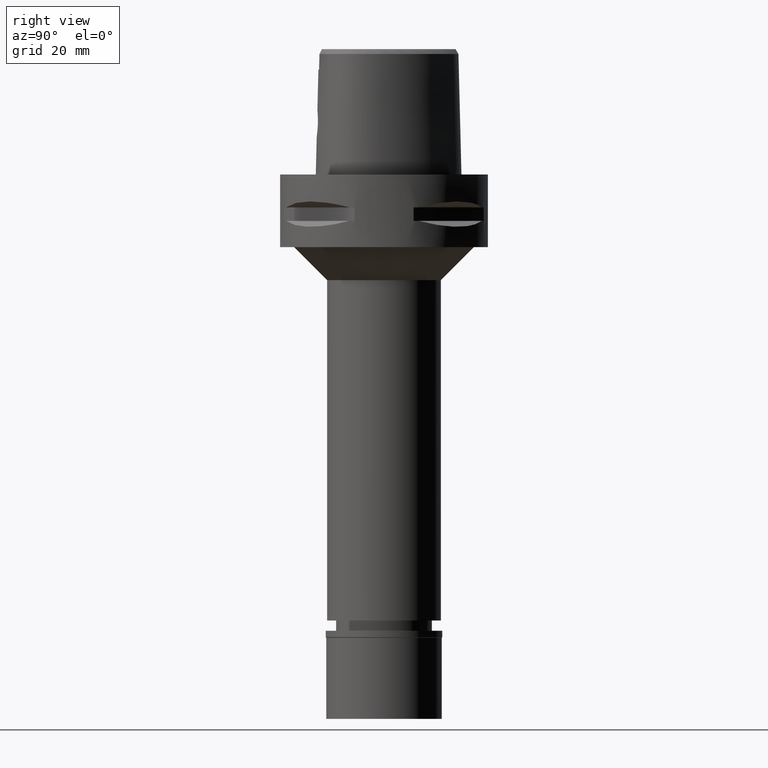
[diagram: clean part render]
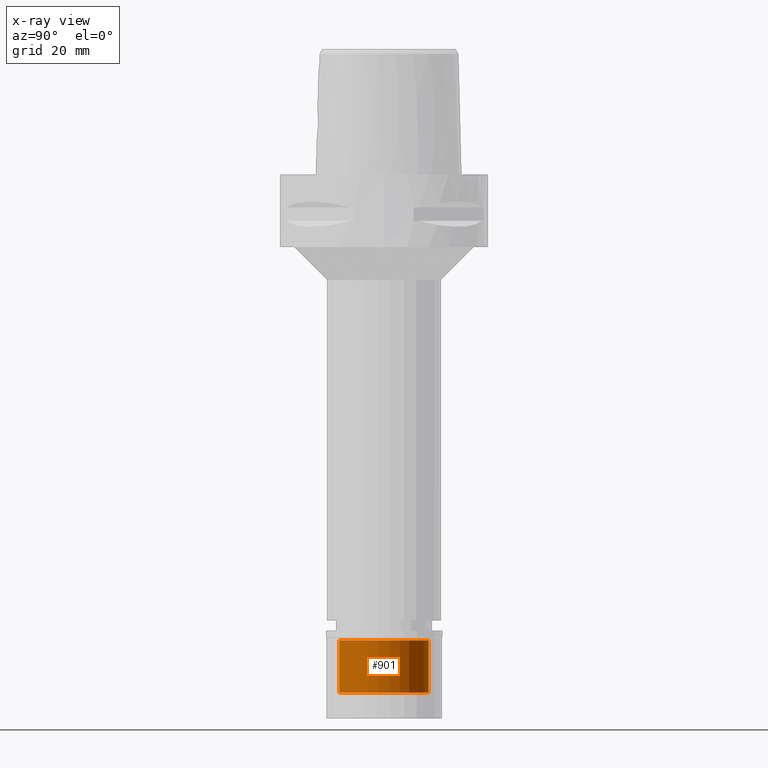
[diagram: x-ray — body ghosted, one internal face saturated and labeled with its STEP entity id]
A machine part, right view, then the same camera in x-ray: the body is ghosted and one INTERNAL B-rep face — a face not visible from any outside direction — is saturated and labeled: STEP entity #901.
In plain terms, the highlighted cylindrical surface (partial cylindrical patch) has radius 13.5 mm, axis along (0, 0, -1).
Its self-contained STEP definition (entity closure, byte-faithful):
#55 = CARTESIAN_POINT ( 'NONE',  ( 0.0000000000000000000, -13.50000000000000000, -18.70000000000000284 ) ) ;
#275 = CARTESIAN_POINT ( 'NONE',  ( 0.0000000000000000000, 0.0000000000000000000, 0.0000000000000000000 ) ) ;
#398 = LINE ( 'NONE', #55, #1889 ) ;
#533 = ORIENTED_EDGE ( 'NONE', *, *, #4549, .T. ) ;
#563 = VERTEX_POINT ( 'NONE', #1001 ) ;
#588 = EDGE_LOOP ( 'NONE', ( #1350, #533, #3527, #1978 ) ) ;
#901 = ADVANCED_FACE ( 'NONE', ( #1531 ), #1131, .F. ) ;
#1001 = CARTESIAN_POINT ( 'NONE',  ( 0.0000000000000000000, 13.50000000000000000, -2.899999999999999911 ) ) ;
#1128 = DIRECTION ( 'NONE',  ( 0.0000000000000000000, -1.000000000000000000, 0.0000000000000000000 ) ) ;
#1131 = CYLINDRICAL_SURFACE ( 'NONE', #2089, 13.50000000000000000 ) ;
#1173 = DIRECTION ( 'NONE',  ( 0.0000000000000000000, 0.0000000000000000000, 1.000000000000000000 ) ) ;
#1350 = ORIENTED_EDGE ( 'NONE', *, *, #3976, .T. ) ;
#1391 = EDGE_CURVE ( 'NONE', #3968, #563, #3375, .T. ) ;
#1531 = FACE_OUTER_BOUND ( 'NONE', #588, .T. ) ;
#1621 = VERTEX_POINT ( 'NONE', #4438 ) ;
#1889 = VECTOR ( 'NONE', #1990, 1000.000000000000000 ) ;
#1978 = ORIENTED_EDGE ( 'NONE', *, *, #4948, .F. ) ;
#1990 = DIRECTION ( 'NONE',  ( 0.0000000000000000000, 0.0000000000000000000, 1.000000000000000000 ) ) ;
#2029 = VECTOR ( 'NONE', #1173, 1000.000000000000000 ) ;
#2089 = AXIS2_PLACEMENT_3D ( 'NONE', #275, #4982, #4623 ) ;
#2310 = CARTESIAN_POINT ( 'NONE',  ( 0.0000000000000000000, 13.50000000000000000, -18.70000000000000284 ) ) ;
#2380 = CIRCLE ( 'NONE', #3441, 13.50000000000000000 ) ;
#2560 = AXIS2_PLACEMENT_3D ( 'NONE', #4572, #4931, #1128 ) ;
#2794 = CARTESIAN_POINT ( 'NONE',  ( 0.0000000000000000000, -13.50000000000000000, -2.899999999999999911 ) ) ;
#3375 = CIRCLE ( 'NONE', #2560, 13.50000000000000000 ) ;
#3441 = AXIS2_PLACEMENT_3D ( 'NONE', #3959, #4754, #4373 ) ;
#3527 = ORIENTED_EDGE ( 'NONE', *, *, #1391, .T. ) ;
#3959 = CARTESIAN_POINT ( 'NONE',  ( 0.0000000000000000000, 0.0000000000000000000, -18.70000000000000284 ) ) ;
#3968 = VERTEX_POINT ( 'NONE', #2794 ) ;
#3976 = EDGE_CURVE ( 'NONE', #4435, #1621, #2380, .T. ) ;
#4222 = LINE ( 'NONE', #2310, #2029 ) ;
#4373 = DIRECTION ( 'NONE',  ( 0.0000000000000000000, 1.000000000000000000, 0.0000000000000000000 ) ) ;
#4435 = VERTEX_POINT ( 'NONE', #4648 ) ;
#4438 = CARTESIAN_POINT ( 'NONE',  ( 0.0000000000000000000, -13.50000000000000000, -18.70000000000000284 ) ) ;
#4549 = EDGE_CURVE ( 'NONE', #1621, #3968, #398, .T. ) ;
#4572 = CARTESIAN_POINT ( 'NONE',  ( 0.0000000000000000000, 0.0000000000000000000, -2.899999999999999911 ) ) ;
#4623 = DIRECTION ( 'NONE',  ( 0.0000000000000000000, -1.000000000000000000, 0.0000000000000000000 ) ) ;
#4648 = CARTESIAN_POINT ( 'NONE',  ( 0.0000000000000000000, 13.50000000000000000, -18.70000000000000284 ) ) ;
#4754 = DIRECTION ( 'NONE',  ( 0.0000000000000000000, 0.0000000000000000000, -1.000000000000000000 ) ) ;
#4931 = DIRECTION ( 'NONE',  ( 0.0000000000000000000, 0.0000000000000000000, 1.000000000000000000 ) ) ;
#4948 = EDGE_CURVE ( 'NONE', #4435, #563, #4222, .T. ) ;
#4982 = DIRECTION ( 'NONE',  ( 0.0000000000000000000, 0.0000000000000000000, -1.000000000000000000 ) ) ;